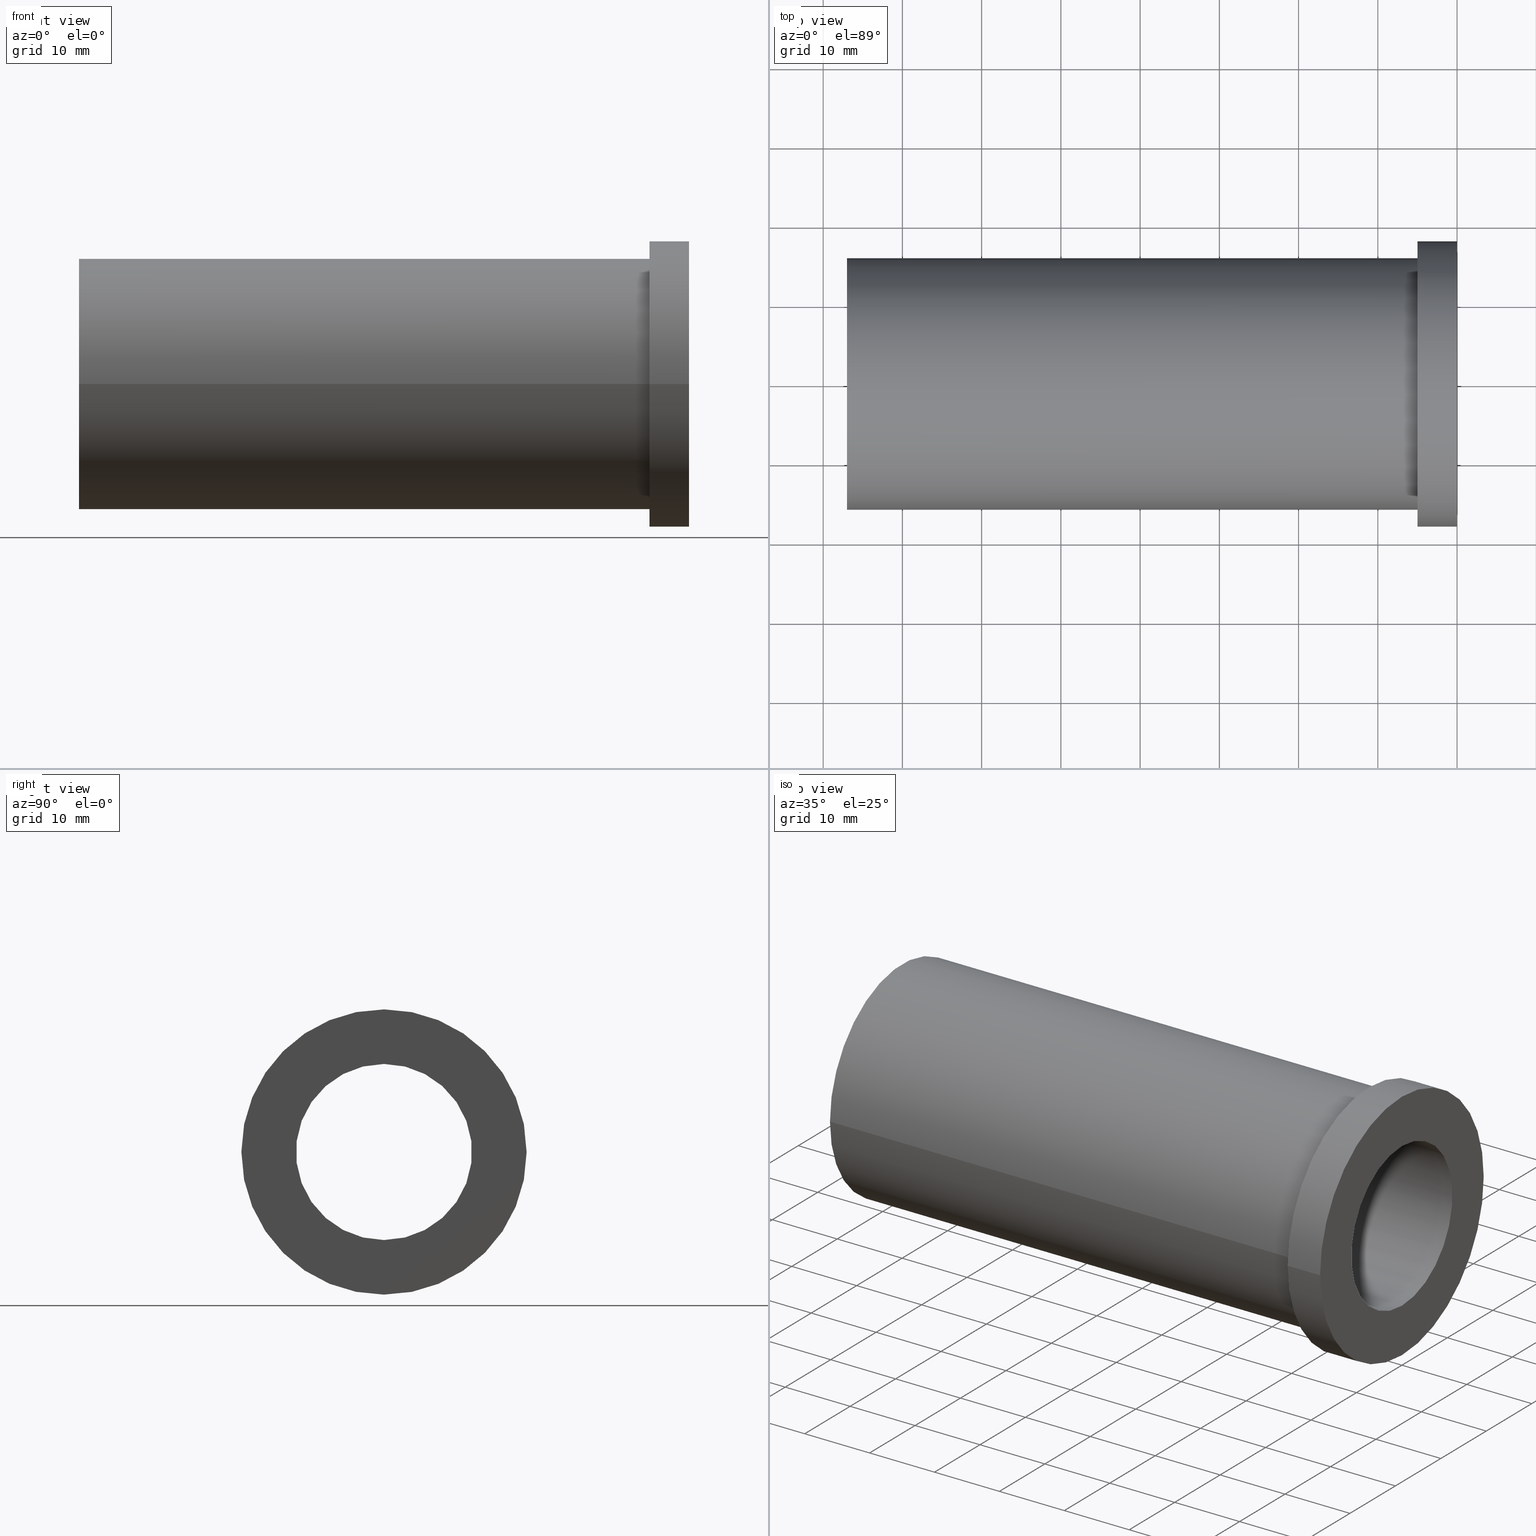
[diagram: canonical four-view strip — front | top / right | iso, engineering-drawing reading convention]
A machine part, canonical four-view strip (front | top / right | iso — engineering-drawing reading convention). The complete STEP part file that produces these views, byte-faithful:
ISO-10303-21;
HEADER;
/* Generated by software containing ST-Developer
 * from STEP Tools, Inc. (www.steptools.com) 
 */

FILE_DESCRIPTION(
/* description */ (''),
/* implementation_level */ '2;1');

FILE_NAME(
/* name */ 
'Z:\\\X2\C5F0AD6CC18C\X0\\\DRAWING_3D\\1. \X2\C778BCA4D130\X0\\\4. LAY
-OUT\\ACCESSORY&OTEHERS\\POWER MILLING CHUCK\\CK-COLLET\\INCH\\CK31.75
\\CK31.75-22.225\\CK31.75-22.225.stp',
/* time_stamp */ '2023-06-13T13:35:10+09:00',
/* author */ ('eos'),
/* organization */ (''),
/* preprocessor_version */ 'ST-DEVELOPER v18.1',
/* originating_system */ 'Autodesk Inventor 2022',
/* authorisation */ '');

FILE_SCHEMA (('AUTOMOTIVE_DESIGN { 1 0 10303 214 3 1 1 }'));
ENDSEC;

DATA;
#10=MECHANICAL_DESIGN_GEOMETRIC_PRESENTATION_REPRESENTATION('',(#13),#239);
#11=SHAPE_REPRESENTATION_RELATIONSHIP('SRR','None',#246,#12);
#12=ADVANCED_BREP_SHAPE_REPRESENTATION('',(#14),#238);
#13=STYLED_ITEM('',(#255),#14);
#14=MANIFOLD_SOLID_BREP('\X2\C194B9ACB4DC\X0\1',#123);
#15=FACE_BOUND('',#35,.T.);
#16=FACE_BOUND('',#37,.T.);
#17=FACE_BOUND('',#40,.T.);
#18=PLANE('',#157);
#19=PLANE('',#158);
#20=PLANE('',#162);
#21=CONICAL_SURFACE('',#150,6.3440505,1.02974425867665);
#22=FACE_OUTER_BOUND('',#30,.T.);
#23=FACE_OUTER_BOUND('',#31,.T.);
#24=FACE_OUTER_BOUND('',#32,.T.);
#25=FACE_OUTER_BOUND('',#33,.T.);
#26=FACE_OUTER_BOUND('',#34,.T.);
#27=FACE_OUTER_BOUND('',#36,.T.);
#28=FACE_OUTER_BOUND('',#38,.T.);
#29=FACE_OUTER_BOUND('',#39,.T.);
#30=EDGE_LOOP('',(#83,#84,#85,#86,#87));
#31=EDGE_LOOP('',(#88,#89,#90,#91,#92));
#32=EDGE_LOOP('',(#93,#94,#95,#96));
#33=EDGE_LOOP('',(#97,#98,#99,#100));
#34=EDGE_LOOP('',(#101));
#35=EDGE_LOOP('',(#102));
#36=EDGE_LOOP('',(#103));
#37=EDGE_LOOP('',(#104));
#38=EDGE_LOOP('',(#105,#106,#107,#108));
#39=EDGE_LOOP('',(#109));
#40=EDGE_LOOP('',(#110));
#41=LINE('',#209,#46);
#42=LINE('',#216,#47);
#43=LINE('',#220,#48);
#44=LINE('',#225,#49);
#45=LINE('',#234,#50);
#46=VECTOR('',#169,11.1125);
#47=VECTOR('',#178,6.3440505);
#48=VECTOR('',#183,12.688101);
#49=VECTOR('',#188,18.);
#50=VECTOR('',#201,15.8750000000001);
#51=CIRCLE('',#147,11.1125);
#52=CIRCLE('',#148,11.1125);
#53=CIRCLE('',#149,11.1125);
#54=CIRCLE('',#151,12.688101);
#55=CIRCLE('',#153,12.688101);
#56=CIRCLE('',#155,18.);
#57=CIRCLE('',#156,18.);
#58=CIRCLE('',#159,15.875);
#59=CIRCLE('',#161,15.8750000000001);
#60=VERTEX_POINT('',#206);
#61=VERTEX_POINT('',#208);
#62=VERTEX_POINT('',#210);
#63=VERTEX_POINT('',#214);
#64=VERTEX_POINT('',#218);
#65=VERTEX_POINT('',#222);
#66=VERTEX_POINT('',#224);
#67=VERTEX_POINT('',#229);
#68=VERTEX_POINT('',#232);
#69=EDGE_CURVE('',#60,#60,#51,.T.);
#70=EDGE_CURVE('',#60,#61,#41,.T.);
#71=EDGE_CURVE('',#62,#61,#52,.T.);
#72=EDGE_CURVE('',#61,#62,#53,.T.);
#73=EDGE_CURVE('',#63,#63,#54,.T.);
#74=EDGE_CURVE('',#63,#62,#42,.T.);
#75=EDGE_CURVE('',#64,#64,#55,.T.);
#76=EDGE_CURVE('',#64,#63,#43,.T.);
#77=EDGE_CURVE('',#65,#65,#56,.T.);
#78=EDGE_CURVE('',#65,#66,#44,.T.);
#79=EDGE_CURVE('',#66,#66,#57,.T.);
#80=EDGE_CURVE('',#67,#67,#58,.T.);
#81=EDGE_CURVE('',#68,#68,#59,.T.);
#82=EDGE_CURVE('',#68,#67,#45,.T.);
#83=ORIENTED_EDGE('',*,*,#69,.F.);
#84=ORIENTED_EDGE('',*,*,#70,.T.);
#85=ORIENTED_EDGE('',*,*,#71,.F.);
#86=ORIENTED_EDGE('',*,*,#72,.F.);
#87=ORIENTED_EDGE('',*,*,#70,.F.);
#88=ORIENTED_EDGE('',*,*,#73,.T.);
#89=ORIENTED_EDGE('',*,*,#74,.T.);
#90=ORIENTED_EDGE('',*,*,#71,.T.);
#91=ORIENTED_EDGE('',*,*,#72,.T.);
#92=ORIENTED_EDGE('',*,*,#74,.F.);
#93=ORIENTED_EDGE('',*,*,#75,.F.);
#94=ORIENTED_EDGE('',*,*,#76,.T.);
#95=ORIENTED_EDGE('',*,*,#73,.F.);
#96=ORIENTED_EDGE('',*,*,#76,.F.);
#97=ORIENTED_EDGE('',*,*,#77,.F.);
#98=ORIENTED_EDGE('',*,*,#78,.T.);
#99=ORIENTED_EDGE('',*,*,#79,.T.);
#100=ORIENTED_EDGE('',*,*,#78,.F.);
#101=ORIENTED_EDGE('',*,*,#77,.T.);
#102=ORIENTED_EDGE('',*,*,#69,.T.);
#103=ORIENTED_EDGE('',*,*,#80,.F.);
#104=ORIENTED_EDGE('',*,*,#75,.T.);
#105=ORIENTED_EDGE('',*,*,#81,.F.);
#106=ORIENTED_EDGE('',*,*,#82,.T.);
#107=ORIENTED_EDGE('',*,*,#80,.T.);
#108=ORIENTED_EDGE('',*,*,#82,.F.);
#109=ORIENTED_EDGE('',*,*,#79,.F.);
#110=ORIENTED_EDGE('',*,*,#81,.T.);
#111=CYLINDRICAL_SURFACE('',#146,11.1125);
#112=CYLINDRICAL_SURFACE('',#152,12.688101);
#113=CYLINDRICAL_SURFACE('',#154,18.);
#114=CYLINDRICAL_SURFACE('',#160,15.8750000000001);
#115=ADVANCED_FACE('',(#22),#111,.F.);
#116=ADVANCED_FACE('',(#23),#21,.F.);
#117=ADVANCED_FACE('',(#24),#112,.F.);
#118=ADVANCED_FACE('',(#25),#113,.T.);
#119=ADVANCED_FACE('',(#26,#15),#18,.T.);
#120=ADVANCED_FACE('',(#27,#16),#19,.T.);
#121=ADVANCED_FACE('',(#28),#114,.T.);
#122=ADVANCED_FACE('',(#29,#17),#20,.T.);
#123=CLOSED_SHELL('',(#115,#116,#117,#118,#119,#120,#121,#122));
#124=DERIVED_UNIT_ELEMENT(#127,1.);
#125=DERIVED_UNIT_ELEMENT(#241,-3.);
#126=DIMENSIONAL_EXPONENTS(1.,0.,0.,0.,0.,0.,0.);
#127=(
CONVERSION_BASED_UNIT('gram',#129)
MASS_UNIT()
NAMED_UNIT(#126)
);
#128=(
MASS_UNIT()
NAMED_UNIT(*)
SI_UNIT(.KILO.,.GRAM.)
);
#129=MASS_MEASURE_WITH_UNIT(MASS_MEASURE(0.001),#128);
#130=DERIVED_UNIT((#124,#125));
#131=MEASURE_REPRESENTATION_ITEM('density measure',
POSITIVE_RATIO_MEASURE(1.),#130);
#132=PROPERTY_DEFINITION_REPRESENTATION(#137,#134);
#133=PROPERTY_DEFINITION_REPRESENTATION(#138,#135);
#134=REPRESENTATION('material name',(#136),#238);
#135=REPRESENTATION('density',(#131),#238);
#136=DESCRIPTIVE_REPRESENTATION_ITEM('\X2\C77CBC18\X0\','\X2\C77CBC18\X0\');
#137=PROPERTY_DEFINITION('material property','material name',#248);
#138=PROPERTY_DEFINITION('material property','density of part',#248);
#139=DATE_TIME_ROLE('creation_date');
#140=APPLIED_DATE_AND_TIME_ASSIGNMENT(#141,#139,(#248));
#141=DATE_AND_TIME(#142,#143);
#142=CALENDAR_DATE(2023,13,6);
#143=LOCAL_TIME(0,0,0.,#144);
#144=COORDINATED_UNIVERSAL_TIME_OFFSET(0,0,.BEHIND.);
#145=AXIS2_PLACEMENT_3D('placement',#204,#163,#164);
#146=AXIS2_PLACEMENT_3D('',#205,#165,#166);
#147=AXIS2_PLACEMENT_3D('',#207,#167,#168);
#148=AXIS2_PLACEMENT_3D('',#211,#170,#171);
#149=AXIS2_PLACEMENT_3D('',#212,#172,#173);
#150=AXIS2_PLACEMENT_3D('',#213,#174,#175);
#151=AXIS2_PLACEMENT_3D('',#215,#176,#177);
#152=AXIS2_PLACEMENT_3D('',#217,#179,#180);
#153=AXIS2_PLACEMENT_3D('',#219,#181,#182);
#154=AXIS2_PLACEMENT_3D('',#221,#184,#185);
#155=AXIS2_PLACEMENT_3D('',#223,#186,#187);
#156=AXIS2_PLACEMENT_3D('',#226,#189,#190);
#157=AXIS2_PLACEMENT_3D('',#227,#191,#192);
#158=AXIS2_PLACEMENT_3D('',#228,#193,#194);
#159=AXIS2_PLACEMENT_3D('',#230,#195,#196);
#160=AXIS2_PLACEMENT_3D('',#231,#197,#198);
#161=AXIS2_PLACEMENT_3D('',#233,#199,#200);
#162=AXIS2_PLACEMENT_3D('',#235,#202,#203);
#163=DIRECTION('axis',(0.,0.,1.));
#164=DIRECTION('refdir',(1.,0.,0.));
#165=DIRECTION('center_axis',(1.,0.,0.));
#166=DIRECTION('ref_axis',(0.,0.,-1.));
#167=DIRECTION('center_axis',(-1.,0.,0.));
#168=DIRECTION('ref_axis',(0.,0.,-1.));
#169=DIRECTION('',(-1.,0.,0.));
#170=DIRECTION('center_axis',(1.,0.,0.));
#171=DIRECTION('ref_axis',(0.,0.,-1.));
#172=DIRECTION('center_axis',(1.,0.,0.));
#173=DIRECTION('ref_axis',(0.,0.,-1.));
#174=DIRECTION('center_axis',(-1.,0.,0.));
#175=DIRECTION('ref_axis',(0.,0.,1.));
#176=DIRECTION('center_axis',(-1.,0.,0.));
#177=DIRECTION('ref_axis',(0.,0.,1.));
#178=DIRECTION('',(0.515038074910054,1.04972719113862E-16,0.857167300702112));
#179=DIRECTION('center_axis',(-1.,0.,0.));
#180=DIRECTION('ref_axis',(0.,0.,1.));
#181=DIRECTION('center_axis',(1.,0.,0.));
#182=DIRECTION('ref_axis',(0.,0.,1.));
#183=DIRECTION('',(1.,0.,0.));
#184=DIRECTION('center_axis',(1.,0.,0.));
#185=DIRECTION('ref_axis',(0.,1.,0.));
#186=DIRECTION('center_axis',(1.,0.,0.));
#187=DIRECTION('ref_axis',(0.,0.,-1.));
#188=DIRECTION('',(-1.,0.,0.));
#189=DIRECTION('center_axis',(1.,0.,0.));
#190=DIRECTION('ref_axis',(0.,0.,-1.));
#191=DIRECTION('center_axis',(1.,0.,0.));
#192=DIRECTION('ref_axis',(0.,0.,-1.));
#193=DIRECTION('center_axis',(-1.,0.,0.));
#194=DIRECTION('ref_axis',(0.,0.,1.));
#195=DIRECTION('center_axis',(1.,0.,0.));
#196=DIRECTION('ref_axis',(0.,0.,-1.));
#197=DIRECTION('center_axis',(1.,0.,0.));
#198=DIRECTION('ref_axis',(0.,1.,0.));
#199=DIRECTION('center_axis',(1.,0.,0.));
#200=DIRECTION('ref_axis',(0.,0.,-1.));
#201=DIRECTION('',(-1.,0.,0.));
#202=DIRECTION('center_axis',(-1.,0.,0.));
#203=DIRECTION('ref_axis',(0.,0.,1.));
#204=CARTESIAN_POINT('',(0.,0.,0.));
#205=CARTESIAN_POINT('Origin',(-92.3092628071528,0.,0.));
#206=CARTESIAN_POINT('',(0.,-1.3608887555525E-15,11.1125));
#207=CARTESIAN_POINT('Origin',(0.,0.,0.));
#208=CARTESIAN_POINT('',(-56.0532834077996,-1.3608887555525E-15,11.1125));
#209=CARTESIAN_POINT('',(-92.3092628071528,-1.3608887555525E-15,11.1125));
#210=CARTESIAN_POINT('',(-56.0532834077996,-1.3608887555525E-15,-11.1125));
#211=CARTESIAN_POINT('Origin',(-56.0532834077996,0.,0.));
#212=CARTESIAN_POINT('Origin',(-56.0532834077996,0.,0.));
#213=CARTESIAN_POINT('Origin',(-53.1881098894279,0.,0.));
#214=CARTESIAN_POINT('',(-57.,-1.55384422769083E-15,-12.688101));
#215=CARTESIAN_POINT('Origin',(-57.,0.,0.));
#216=CARTESIAN_POINT('',(-53.1881098894279,-7.76922113845417E-16,-6.3440505));
#217=CARTESIAN_POINT('Origin',(-67.,0.,0.));
#218=CARTESIAN_POINT('',(-77.,-1.55384422769083E-15,-12.688101));
#219=CARTESIAN_POINT('Origin',(-77.,0.,0.));
#220=CARTESIAN_POINT('',(-67.,-1.55384422769083E-15,-12.688101));
#221=CARTESIAN_POINT('Origin',(-2.49999999999999,0.,0.));
#222=CARTESIAN_POINT('',(5.55111512312578E-15,-18.,-2.20436423846524E-15));
#223=CARTESIAN_POINT('Origin',(5.55111512312578E-15,0.,0.));
#224=CARTESIAN_POINT('',(-4.99999999999999,-18.,-2.20436423846524E-15));
#225=CARTESIAN_POINT('',(-2.49999999999999,-18.,-2.20436423846524E-15));
#226=CARTESIAN_POINT('Origin',(-4.99999999999999,0.,0.));
#227=CARTESIAN_POINT('Origin',(1.24504562061398E-31,2.26081779560032E-14,
0.));
#228=CARTESIAN_POINT('Origin',(-77.,15.875,0.));
#229=CARTESIAN_POINT('',(-77.,-15.8750000000001,-1.94412679364643E-15));
#230=CARTESIAN_POINT('Origin',(-77.,0.,0.));
#231=CARTESIAN_POINT('Origin',(-41.,0.,0.));
#232=CARTESIAN_POINT('',(-5.,-15.8750000000001,-1.94412679364643E-15));
#233=CARTESIAN_POINT('Origin',(-5.,0.,0.));
#234=CARTESIAN_POINT('',(-41.,-15.8750000000001,-1.94412679364643E-15));
#235=CARTESIAN_POINT('Origin',(-4.99999999999999,18.,0.));
#236=UNCERTAINTY_MEASURE_WITH_UNIT(LENGTH_MEASURE(0.01),#240,
'DISTANCE_ACCURACY_VALUE',
'Maximum model space distance between geometric entities at asserted c
onnectivities');
#237=UNCERTAINTY_MEASURE_WITH_UNIT(LENGTH_MEASURE(0.01),#240,
'DISTANCE_ACCURACY_VALUE',
'Maximum model space distance between geometric entities at asserted c
onnectivities');
#238=(
GEOMETRIC_REPRESENTATION_CONTEXT(3)
GLOBAL_UNCERTAINTY_ASSIGNED_CONTEXT((#236))
GLOBAL_UNIT_ASSIGNED_CONTEXT((#240,#242,#243))
REPRESENTATION_CONTEXT('','3D')
);
#239=(
GEOMETRIC_REPRESENTATION_CONTEXT(3)
GLOBAL_UNCERTAINTY_ASSIGNED_CONTEXT((#237))
GLOBAL_UNIT_ASSIGNED_CONTEXT((#240,#242,#243))
REPRESENTATION_CONTEXT('','3D')
);
#240=(
LENGTH_UNIT()
NAMED_UNIT(*)
SI_UNIT(.MILLI.,.METRE.)
);
#241=(
LENGTH_UNIT()
NAMED_UNIT(*)
SI_UNIT(.CENTI.,.METRE.)
);
#242=(
NAMED_UNIT(*)
PLANE_ANGLE_UNIT()
SI_UNIT($,.RADIAN.)
);
#243=(
NAMED_UNIT(*)
SI_UNIT($,.STERADIAN.)
SOLID_ANGLE_UNIT()
);
#244=SHAPE_DEFINITION_REPRESENTATION(#245,#246);
#245=PRODUCT_DEFINITION_SHAPE('',$,#248);
#246=SHAPE_REPRESENTATION('',(#145),#238);
#247=PRODUCT_DEFINITION_CONTEXT('part definition',#252,'design');
#248=PRODUCT_DEFINITION('LO-CK19.05-6','LO-CK31.75-22.225',#249,#247);
#249=PRODUCT_DEFINITION_FORMATION('',$,#254);
#250=PRODUCT_RELATED_PRODUCT_CATEGORY('LO-CK31.75-22.225',
'LO-CK31.75-22.225',(#254));
#251=APPLICATION_PROTOCOL_DEFINITION('international standard',
'automotive_design',2009,#252);
#252=APPLICATION_CONTEXT(
'Core Data for Automotive Mechanical Design Process');
#253=PRODUCT_CONTEXT('part definition',#252,'mechanical');
#254=PRODUCT('LO-CK19.05-6','LO-CK31.75-22.225',$,(#253));
#255=PRESENTATION_STYLE_ASSIGNMENT((#256));
#256=SURFACE_STYLE_USAGE(.BOTH.,#259);
#257=SURFACE_STYLE_RENDERING_WITH_PROPERTIES($,#263,(#258));
#258=SURFACE_STYLE_TRANSPARENT(0.339999973773956);
#259=SURFACE_SIDE_STYLE('',(#260,#257));
#260=SURFACE_STYLE_FILL_AREA(#261);
#261=FILL_AREA_STYLE('',(#262));
#262=FILL_AREA_STYLE_COLOUR('',#263);
#263=COLOUR_RGB('',0.925490196078431,0.945098039215686,0.937254901960784);
ENDSEC;
END-ISO-10303-21;
